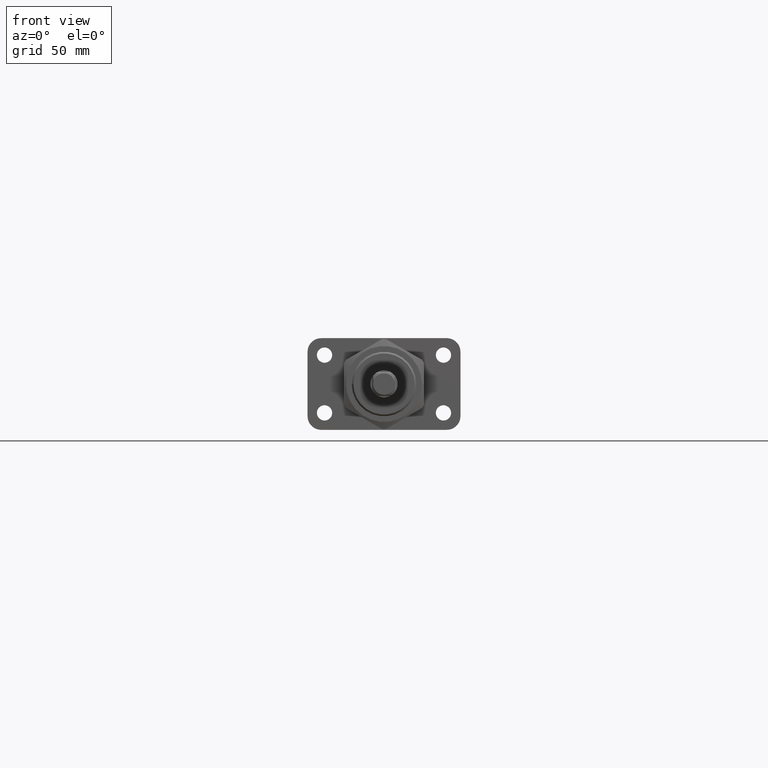
[diagram: clean part render]
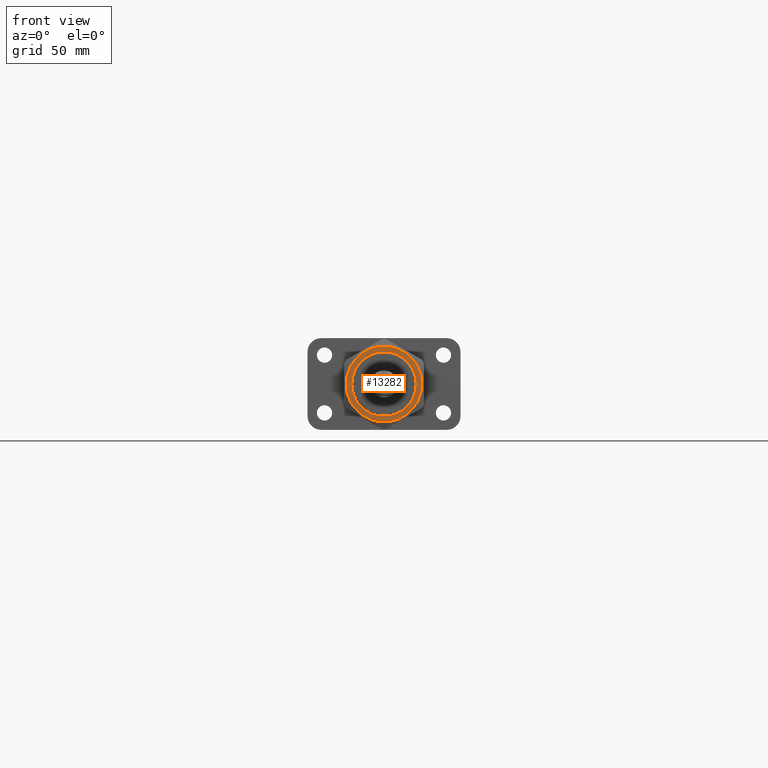
[diagram: same view with one face highlighted and labeled with its STEP entity id]
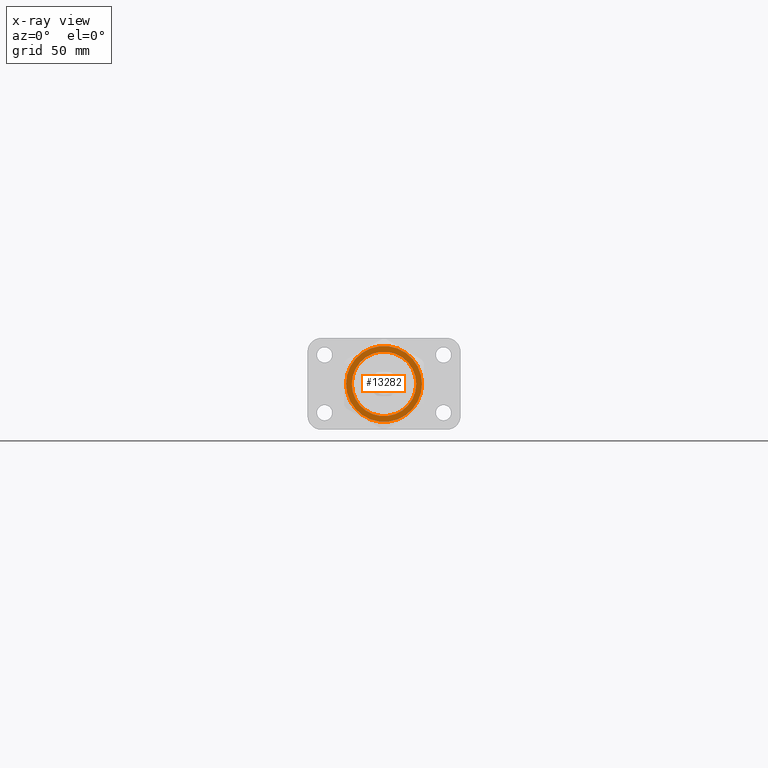
[diagram: x-ray of the same camera — body ghosted, the highlighted face saturated]
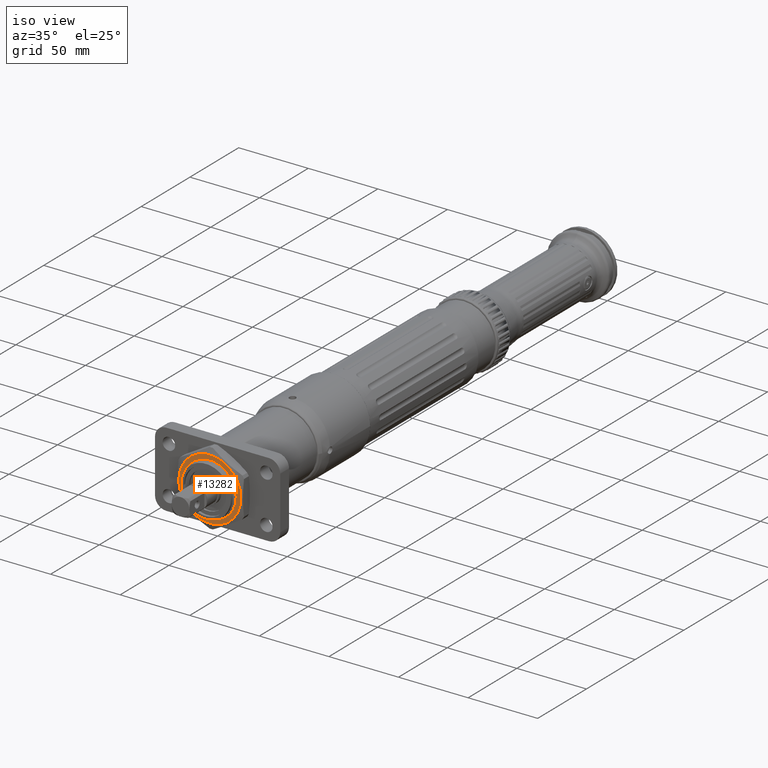
[diagram: same view with one face highlighted and labeled with its STEP entity id]
A machine part, front view. The second image highlights one B-rep face of the part: STEP entity #13282.
The next image is the same camera in x-ray: the body ghosted, the highlighted face saturated — about 0% of this face is hidden behind the body in this view.
A second angle (iso view) of the same face is appended — the face is thin or edge-on in the first view.
In plain terms, the highlighted planar face has unit normal (0, -1, 0).
Its self-contained STEP definition (entity closure, byte-faithful):
#2110=CIRCLE('',#14257,22.3160181013868);
#2275=CIRCLE('',#14447,19.);
#2901=PLANE('',#14446);
#3388=FACE_BOUND('',#4623,.T.);
#3684=FACE_OUTER_BOUND('',#4622,.T.);
#4622=EDGE_LOOP('',(#9469));
#4623=EDGE_LOOP('',(#9470));
#5821=VERTEX_POINT('',#21537);
#6082=VERTEX_POINT('',#22806);
#7110=EDGE_CURVE('',#5821,#5821,#2110,.T.);
#7403=EDGE_CURVE('',#6082,#6082,#2275,.T.);
#9469=ORIENTED_EDGE('',*,*,#7110,.T.);
#9470=ORIENTED_EDGE('',*,*,#7403,.F.);
#13282=ADVANCED_FACE('',(#3684,#3388),#2901,.T.);
#14257=AXIS2_PLACEMENT_3D('',#21538,#16452,#16453);
#14446=AXIS2_PLACEMENT_3D('',#22805,#16918,#16919);
#14447=AXIS2_PLACEMENT_3D('',#22807,#16920,#16921);
#16452=DIRECTION('center_axis',(1.92414935335906E-16,-1.,0.));
#16453=DIRECTION('ref_axis',(1.,1.92414935335906E-16,0.));
#16918=DIRECTION('center_axis',(1.92414935335906E-16,-1.,0.));
#16919=DIRECTION('ref_axis',(0.,0.,-1.));
#16920=DIRECTION('center_axis',(1.92414935335906E-16,-1.,0.));
#16921=DIRECTION('ref_axis',(-1.,-6.03382078600629E-17,0.));
#21537=CARTESIAN_POINT('',(22.3160181013868,-8.00000000000002,0.));
#21538=CARTESIAN_POINT('Origin',(-2.28855870590662E-14,-8.00000000000002,
0.));
#22805=CARTESIAN_POINT('Origin',(-2.28855870590662E-14,-8.00000000000002,
0.));
#22806=CARTESIAN_POINT('',(19.,-8.00000000000002,2.32682891837997E-15));
#22807=CARTESIAN_POINT('Origin',(-4.68224492994088E-15,-8.00000000000002,
0.));